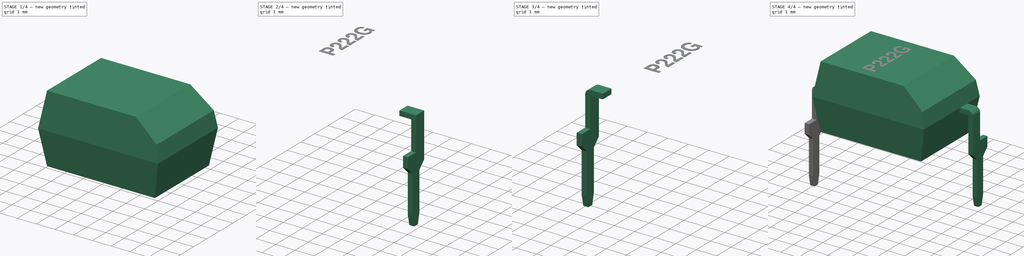
[diagram: build sequence overview — one tinted view per stage of 4, left to right]
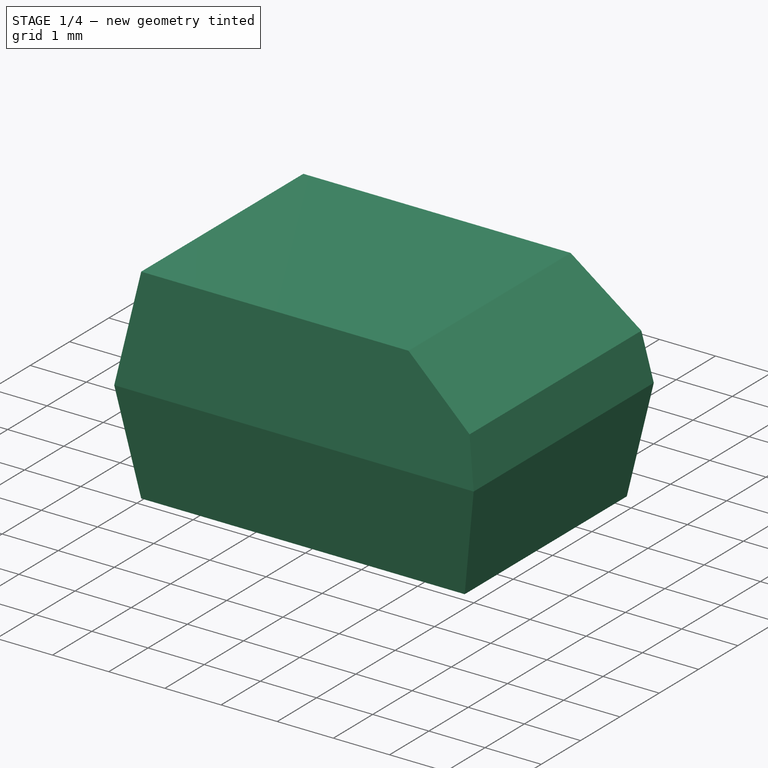
[diagram: stage 1 of 4 — iso view after this stage's code; geometry added in this stage tinted green]
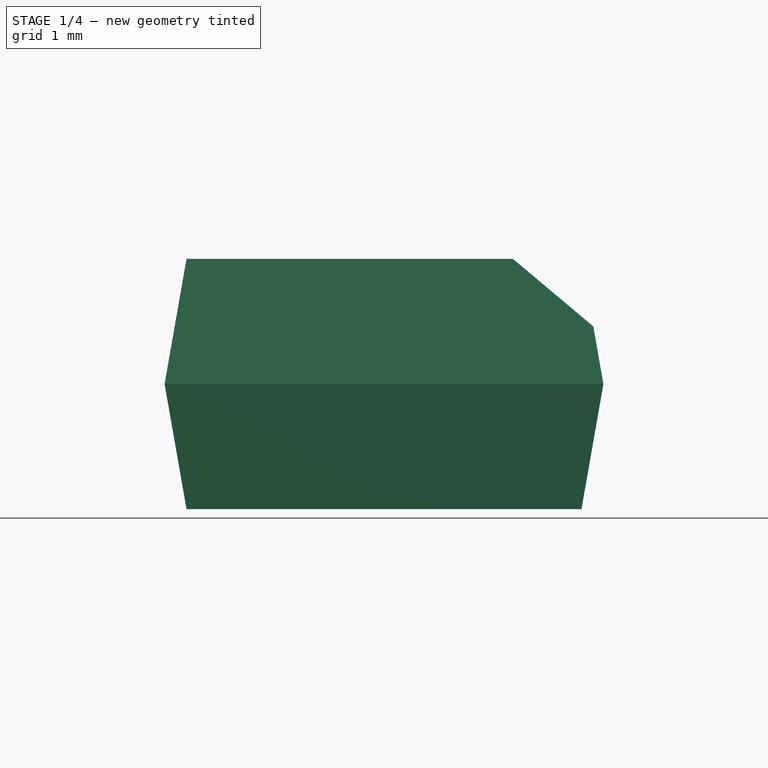
[diagram: stage 1 of 4 — front view after this stage's code; geometry added in this stage tinted green]
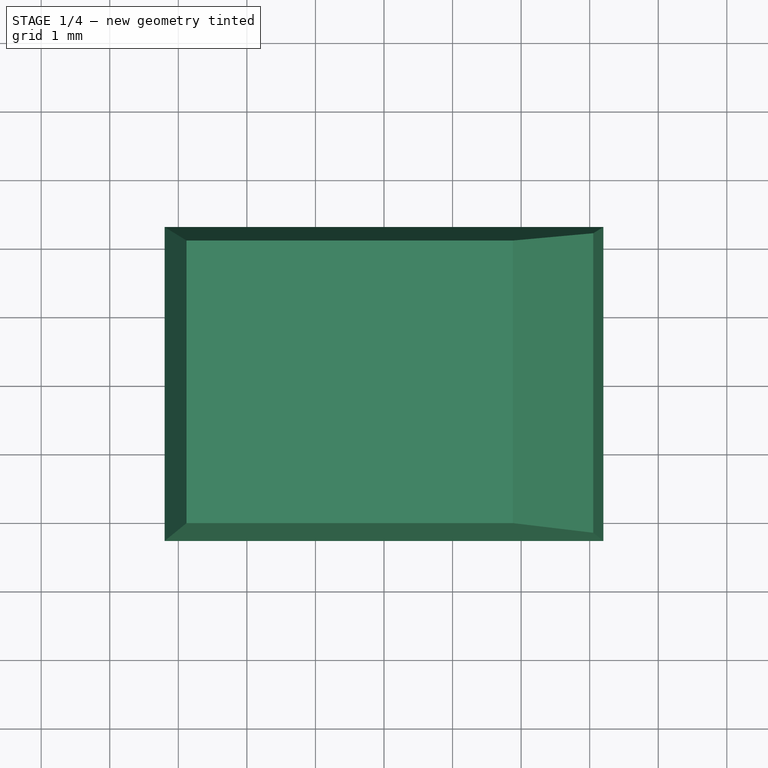
[diagram: stage 1 of 4 — top view after this stage's code; geometry added in this stage tinted green]
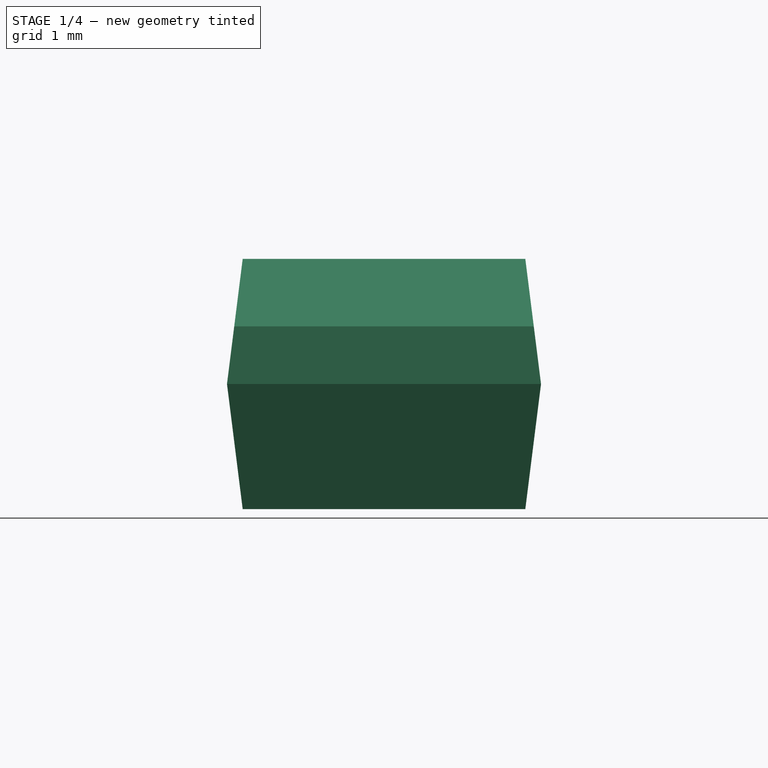
[diagram: stage 1 of 4 — right view after this stage's code; geometry added in this stage tinted green]
FCSTD DOCUMENT  (FreeCAD 0.19R16945 (Git))
Label: DIP-4
License: All rights reserved
LicenseURL: http://en.wikipedia.org/wiki/All_rights_reserved
objects: Sketcher::SketchObject×5, PartDesign::Body×3, PartDesign::Pad×2, Part::Mirroring×2, PartDesign::AdditiveLoft×1, PartDesign::Chamfer×1, PartDesign::Fillet×1, PartDesign::FeatureBase×1, Part::Part2DObjectPython×1, Part::Extrusion×1, Part::MultiFuse×1
note: 22 computed .brp shape members not serialized (recipe doc carries the construction recipe); baked Part::Feature solids carry a one-line shape summary decoded from their .brp

FEATURE [Sketcher::SketchObject] Sketch  label="Mid"
  AttachmentOffset = pos=(0,0,2.625) rot=(0,0,1;0rad)
  MapMode = 5
  Placement = pos=(0,0,2.625) rot=(0,0,1;0rad)
  Support = -> [XY_Plane]
  expr: AttachmentOffset.Base.z = 0.8 + 3.65 / 2
  sketch-geometry (4):
    g0: LineSegment StartX=-3.2 StartY=2.29 StartZ=0 EndX=3.2 EndY=2.29 EndZ=0
    g1: LineSegment StartX=3.2 StartY=2.29 StartZ=0 EndX=3.2 EndY=-2.29 EndZ=0
    g2: LineSegment StartX=3.2 StartY=-2.29 StartZ=0 EndX=-3.2 EndY=-2.29 EndZ=0
    g3: LineSegment StartX=-3.2 StartY=-2.29 StartZ=0 EndX=-3.2 EndY=2.29 EndZ=0
  constraints (11):
    c: Coincident(g0,g1)
    c: Coincident(g1,g2)
    c: Coincident(g2,g3)
    c: Coincident(g3,g0)
    c: Horizontal(g0)
    c: Horizontal(g2)
    c: Vertical(g1)
    c: Vertical(g3)
    c: Symmetric(g1,g0,g-1)
    c: DistanceX(g0,g0) = 6.4
    c: DistanceY(g1,g1) = 4.58
FEATURE [Sketcher::SketchObject] Sketch001  label="Bottom"
  AttachmentOffset = pos=(0,0,0.8) rot=(0,0,1;0rad)
  MapMode = 5
  Placement = pos=(0,0,0.8) rot=(0,0,1;0rad)
  Support = -> [XY_Plane]
  expr: Constraints[10] = 0.9 * Mid.Constraints[10]
  expr: Constraints[9] = 0.9 * Mid.Constraints[9]
  sketch-geometry (4):
    g0: LineSegment StartX=-2.88 StartY=2.061 StartZ=0 EndX=2.88 EndY=2.061 EndZ=0
    g1: LineSegment StartX=2.88 StartY=2.061 StartZ=0 EndX=2.88 EndY=-2.061 EndZ=0
    g2: LineSegment StartX=2.88 StartY=-2.061 StartZ=0 EndX=-2.88 EndY=-2.061 EndZ=0
    g3: LineSegment StartX=-2.88 StartY=-2.061 StartZ=0 EndX=-2.88 EndY=2.061 EndZ=0
  constraints (11):
    c: Coincident(g0,g1)
    c: Coincident(g1,g2)
    c: Coincident(g2,g3)
    c: Coincident(g3,g0)
    c: Horizontal(g0)
    c: Horizontal(g2)
    c: Vertical(g1)
    c: Vertical(g3)
    c: Symmetric(g1,g0,g-1)
    c: DistanceX(g0,g0) = 5.76
    c: DistanceY(g1,g1) = 4.122
FEATURE [Sketcher::SketchObject] Sketch002  label="Top"
  AttachmentOffset = pos=(0,0,4.45) rot=(0,0,1;0rad)
  MapMode = 5
  Placement = pos=(0,0,4.45) rot=(0,0,1;0rad)
  Support = -> [XY_Plane]
  expr: AttachmentOffset.Base.z = 0.8 + 3.65
  expr: Constraints[10] = Bottom.Constraints[10]
  expr: Constraints[9] = Bottom.Constraints[9]
  sketch-geometry (4):
    g0: LineSegment StartX=-2.88 StartY=2.061 StartZ=0 EndX=2.88 EndY=2.061 EndZ=0
    g1: LineSegment StartX=2.88 StartY=2.061 StartZ=0 EndX=2.88 EndY=-2.061 EndZ=0
    g2: LineSegment StartX=2.88 StartY=-2.061 StartZ=0 EndX=-2.88 EndY=-2.061 EndZ=0
    g3: LineSegment StartX=-2.88 StartY=-2.061 StartZ=0 EndX=-2.88 EndY=2.061 EndZ=0
  constraints (11):
    c: Coincident(g0,g1)
    c: Coincident(g1,g2)
    c: Coincident(g2,g3)
    c: Coincident(g3,g0)
    c: Horizontal(g0)
    c: Horizontal(g2)
    c: Vertical(g1)
    c: Vertical(g3)
    c: Symmetric(g1,g0,g-1)
    c: DistanceX(g0,g0) = 5.76
    c: DistanceY(g1,g1) = 4.122
FEATURE [PartDesign::AdditiveLoft] AdditiveLoft
  Closed = true
  Profile = -> Sketch002
  Ruled = true
  Sections = -> [Sketch,Sketch001]
FEATURE [PartDesign::Chamfer] Chamfer
  Base = -> AdditiveLoft [Edge2]
  BaseFeature = -> AdditiveLoft
  Size = 1
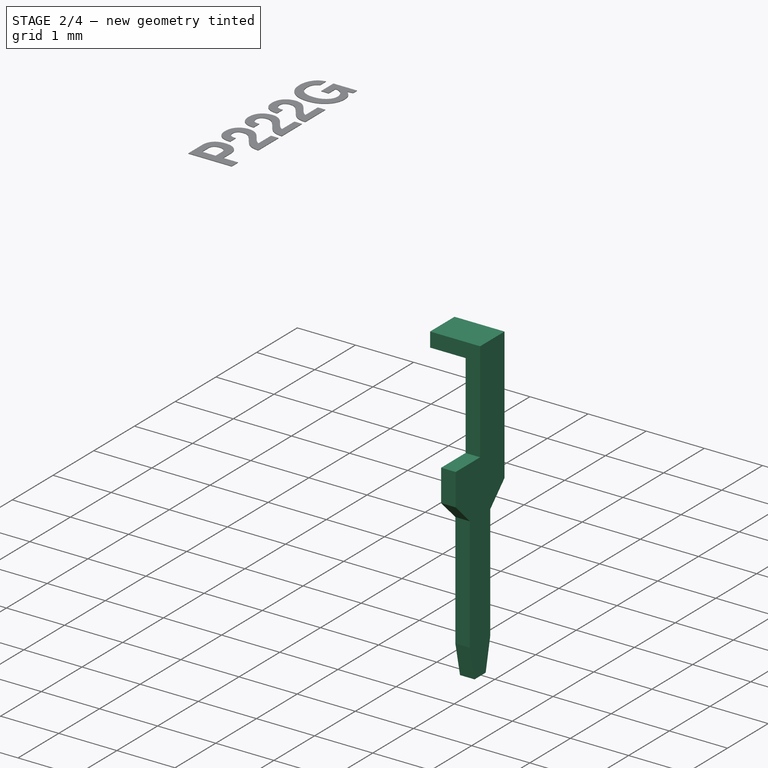
[diagram: stage 2 of 4 — iso view after this stage's code; geometry added in this stage tinted green]
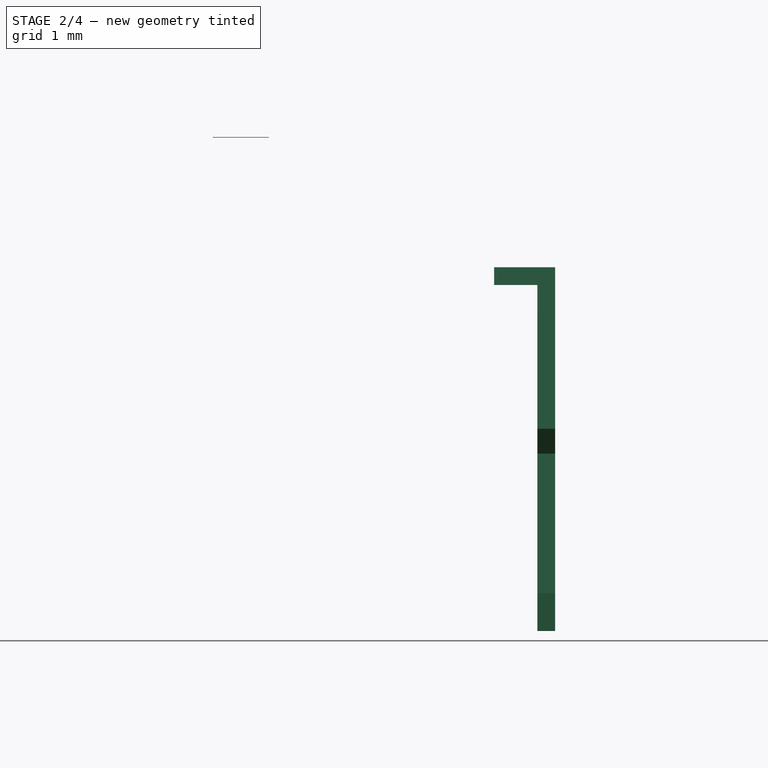
[diagram: stage 2 of 4 — front view after this stage's code; geometry added in this stage tinted green]
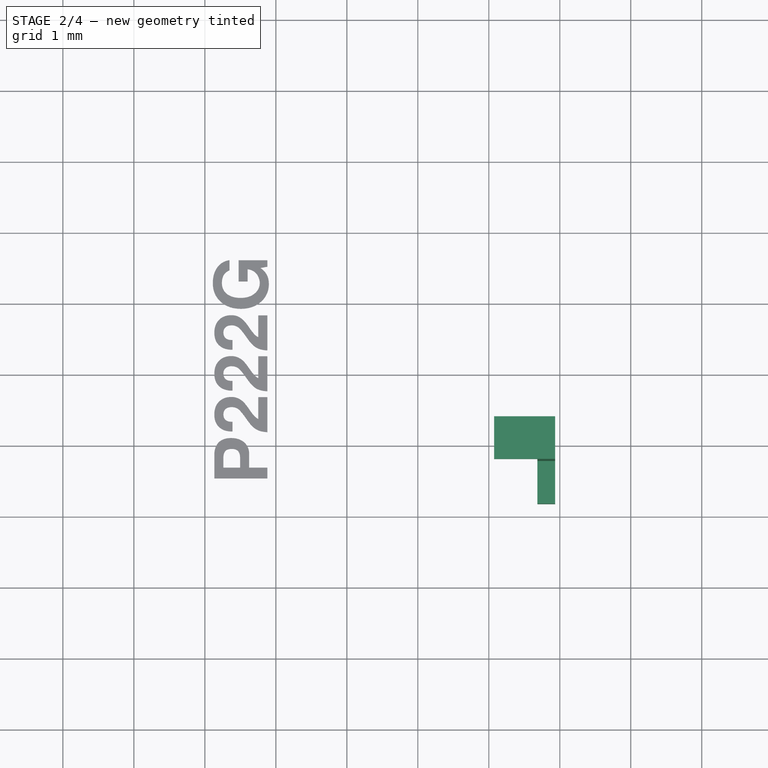
[diagram: stage 2 of 4 — top view after this stage's code; geometry added in this stage tinted green]
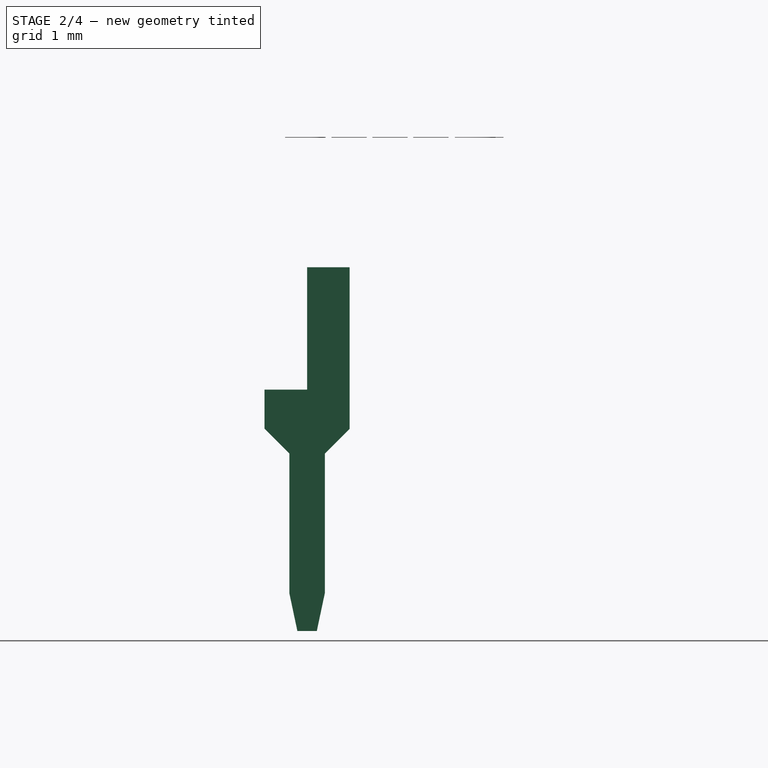
[diagram: stage 2 of 4 — right view after this stage's code; geometry added in this stage tinted green]
FEATURE [PartDesign::Body] Body  label="Housing"
  Group = -> [Sketch,Sketch001,Sketch002,AdditiveLoft,Chamfer]
  Origin = -> Origin
  Tip = -> Chamfer
FEATURE [Sketcher::SketchObject] Sketch003
  AttachmentOffset = pos=(0,0,3.81) rot=(0,0,1;0rad)
  MapMode = 5
  Placement = pos=(3.81,-8e-16,8e-16) rot=(0.57735,0.57735,0.57735;2.0944rad)
  Support = -> [YZ_Plane001]
  expr: Constraints[38] = 3.65 / 2 - 0.1
  sketch-geometry (15):
    g0: LineSegment StartX=-1.87 StartY=0.9 StartZ=0 EndX=-1.87 EndY=0.35 EndZ=0
    g1: LineSegment StartX=-1.87 StartY=0.35 StartZ=0 EndX=-1.52 EndY=0 EndZ=0
    g2: LineSegment StartX=-1.52 StartY=0 StartZ=0 EndX=-1.52 EndY=-1.96657 EndZ=0
    g3: LineSegment StartX=-1.52 StartY=-1.96657 StartZ=0 EndX=-1.40681 EndY=-2.5 EndZ=0
    g4: LineSegment StartX=-1.40681 StartY=-2.5 StartZ=0 EndX=-1.13319 EndY=-2.5 EndZ=0
    g5: LineSegment StartX=-1.13319 StartY=-2.5 StartZ=0 EndX=-1.02 EndY=-1.96657 EndZ=0
    g6: LineSegment StartX=-1.02 StartY=-1.96657 StartZ=0 EndX=-1.02 EndY=0 EndZ=0
    g7: LineSegment StartX=-1.02 StartY=0 StartZ=0 EndX=-0.67 EndY=0.35 EndZ=0
    g8: LineSegment StartX=-0.67 StartY=0.35 StartZ=0 EndX=-0.67 EndY=0.9 EndZ=0
    g9: LineSegment [constr] StartX=-1.87 StartY=0.9 StartZ=0 EndX=-0.67 EndY=0.9 EndZ=0
    g10: GeomPoint X=-1.27 Y=0.9 Z=0
    g11: LineSegment StartX=-1.87 StartY=0.9 StartZ=0 EndX=-1.27 EndY=0.9 EndZ=0
    g12: LineSegment StartX=-1.27 StartY=0.9 StartZ=0 EndX=-1.27 EndY=2.625 EndZ=0
    g13: LineSegment StartX=-1.27 StartY=2.625 StartZ=0 EndX=-0.67 EndY=2.625 EndZ=0
    g14: LineSegment StartX=-0.67 StartY=2.625 StartZ=0 EndX=-0.67 EndY=0.9 EndZ=0
  constraints (39):
    c: Vertical(g0)
    c: Coincident(g0,g1)
    c: Coincident(g1,g2)
    c: Vertical(g2)
    c: Coincident(g2,g3)
    c: Coincident(g3,g4)
    c: Coincident(g4,g5)
    c: Coincident(g5,g6)
    c: Vertical(g6)
    c: Coincident(g6,g7)
    c: Coincident(g7,g8)
    c: Vertical(g8)
    c: Horizontal(g4)
    c: Equal(g3,g5)
    c: Horizontal(g5,g2)
    c: DistanceX(g2,g5) = 0.5
    c: DistanceX(g0,g7) = 1.2
    c: Horizontal(g6,g1)
    c: Horizontal(g7,g0)
    c: Equal(g7,g1)
    c: DistanceY(g4,g6) = 2.5
    c: Coincident(g9,g0)
    c: Coincident(g9,g8)
    c: Symmetric(g8,g0,g10)
    c: DistanceX(g10,g-1) = 1.27
    c: Angle(g6,g7) = 2.35619
    c: Coincident(g0,g11)
    c: Coincident(g11,g10)
    c: Coincident(g11,g12)
    c: Vertical(g12)
    c: Coincident(g12,g13)
    c: Coincident(g13,g14)
    c: Coincident(g14,g8)
    c: Vertical(g14)
    c: Horizontal(g13)
    c: Horizontal(g9)
    c: PointOnObject(g6,g-1)
    c: DistanceY(g6,g8) = 0.9
    c: DistanceY(g14,g14) = 1.725
FEATURE [PartDesign::Pad] Pad
  Length = 0.25
  Length2 = 100
  Midplane = true
  Placement = pos=(0,0,0) rot=(0.57735,0.57735,0.57735;2.0944rad)
  Profile = -> Sketch003
  Type = 0
FEATURE [Sketcher::SketchObject] Sketch004
  ExternalGeometry = -> [Pad]
  MapMode = 5
  Placement = pos=(3.685,-1e-16,8e-16) rot=(0.57735,0.57735,-0.57735;4.18879rad)
  Support = -> [Pad]
  sketch-geometry (4):
    g0: LineSegment StartX=-0.67 StartY=-2.625 StartZ=0 EndX=-1.27 EndY=-2.625 EndZ=0
    g1: LineSegment StartX=-1.27 StartY=-2.625 StartZ=0 EndX=-1.27 EndY=-2.375 EndZ=0
    g2: LineSegment StartX=-1.27 StartY=-2.375 StartZ=0 EndX=-0.67 EndY=-2.375 EndZ=0
    g3: LineSegment StartX=-0.67 StartY=-2.375 StartZ=0 EndX=-0.67 EndY=-2.625 EndZ=0
  constraints (11):
    c: Coincident(g0,g1)
    c: Coincident(g1,g2)
    c: Coincident(g2,g3)
    c: Coincident(g3,g0)
    c: Horizontal(g0)
    c: Horizontal(g2)
    c: Vertical(g1)
    c: Vertical(g3)
    c: Coincident(g0,g-3)
    c: PointOnObject(g1,g-4)
    c: DistanceY(g3,g3) = 0.25
FEATURE [PartDesign::Pad] Pad001
  BaseFeature = -> Pad
  Length = 0.61
  Length2 = 100
  Placement = pos=(0,0,0) rot=(0.57735,0.57735,0.57735;2.0944rad)
  Profile = -> Sketch004
  Refine = true
  Type = 0
  expr: Length = 7.62 / 2 - 6.4 / 2
FEATURE [Part::Part2DObjectPython] ShapeString  # Draft 2D object (typed FeaturePython)
  AttachmentOffset = pos=(2,-0.4,0) rot=(0,0,-1;1.5708rad)
  FontFile = <userpath>/Desktop/GitHub/freecad-projects/00-fonts/FreeSansBold.ttf
  MapMode = 6
  Placement = pos=(-0.12,-1.661,4.45) rot=(0,0,1;1.5708rad)
  Size = 0.4
  String = P222G
  Support = -> [Chamfer]
  Tracking = 0
FEATURE [Part::Extrusion] Extrude
  Base = -> ShapeString
  Dir = (0,0,1)
  DirMode = 2
  FaceMakerClass = Part::FaceMakerBullseye
  LengthFwd = 0.01
  LengthRev = 0
  Solid = false
  Symmetric = false
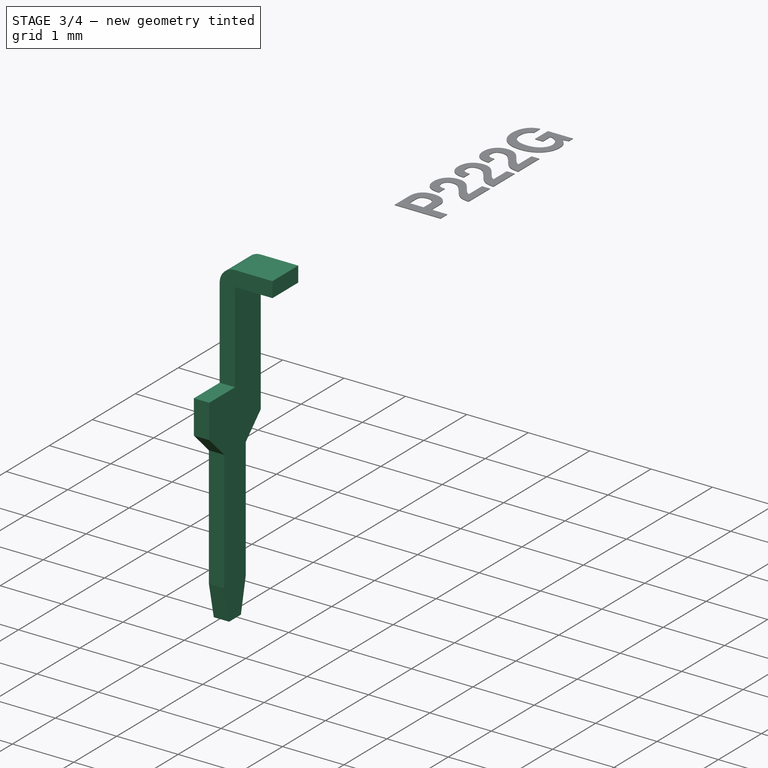
[diagram: stage 3 of 4 — iso view after this stage's code; geometry added in this stage tinted green]
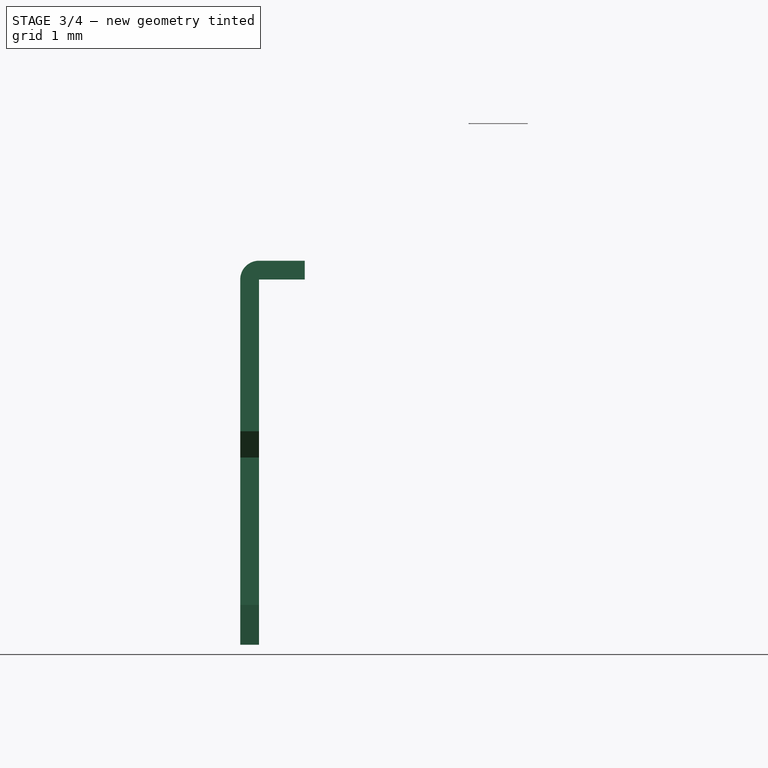
[diagram: stage 3 of 4 — front view after this stage's code; geometry added in this stage tinted green]
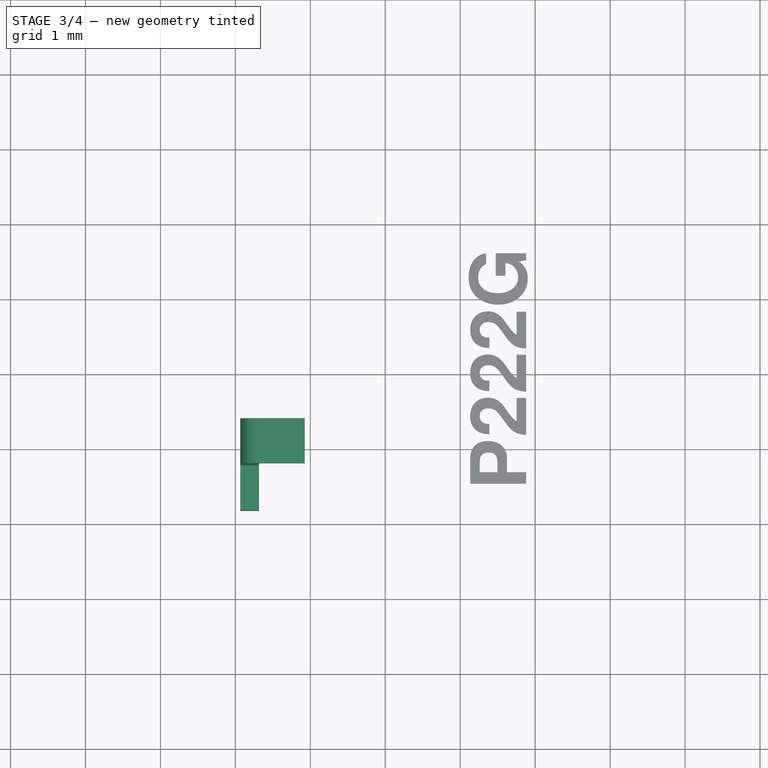
[diagram: stage 3 of 4 — top view after this stage's code; geometry added in this stage tinted green]
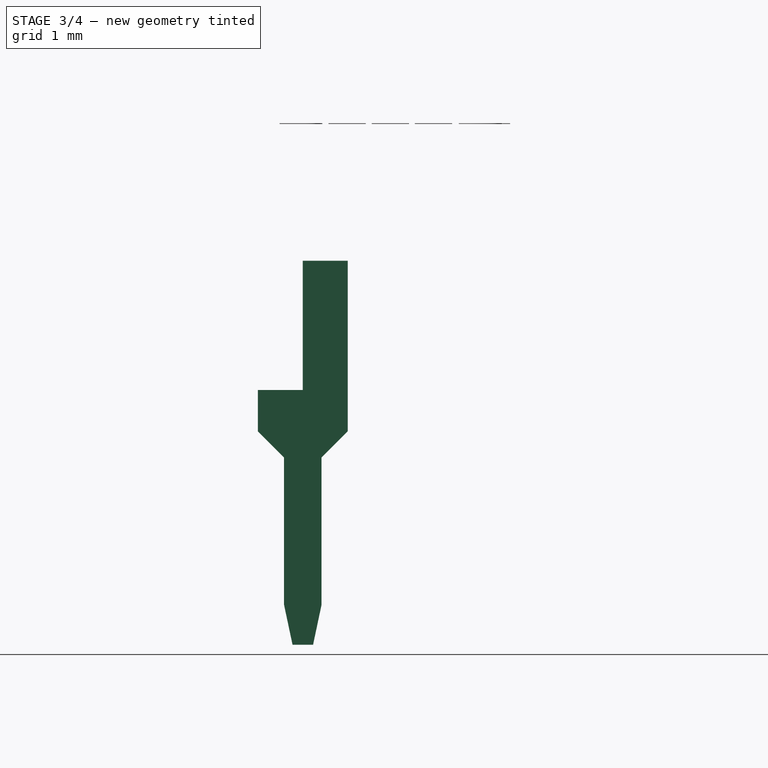
[diagram: stage 3 of 4 — right view after this stage's code; geometry added in this stage tinted green]
FEATURE [PartDesign::Fillet] Fillet
  Base = -> Pad001 [Edge27]
  BaseFeature = -> Pad001
  Placement = pos=(0,0,0) rot=(0.57735,0.57735,0.57735;2.0944rad)
  Radius = 0.25
FEATURE [PartDesign::Body] Body001  label="Lead"
  Group = -> [Sketch003,Pad,Sketch004,Pad001,Fillet]
  Origin = -> Origin001
  Tip = -> Fillet
FEATURE [PartDesign::FeatureBase] Clone
  BaseFeature = -> Body001
FEATURE [Part::Mirroring] Part__Mirroring001  label="LeadClone (Mirror #2)"
  Base = (0,0,0)
  Normal = (0,1,0)
  Source = -> Body002
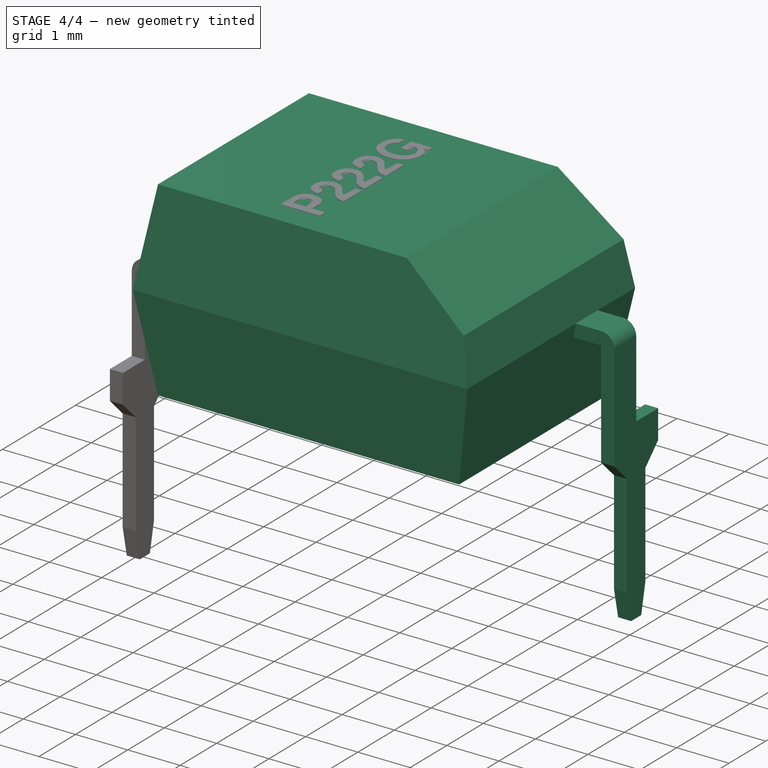
[diagram: stage 4 of 4 — iso view after this stage's code; geometry added in this stage tinted green]
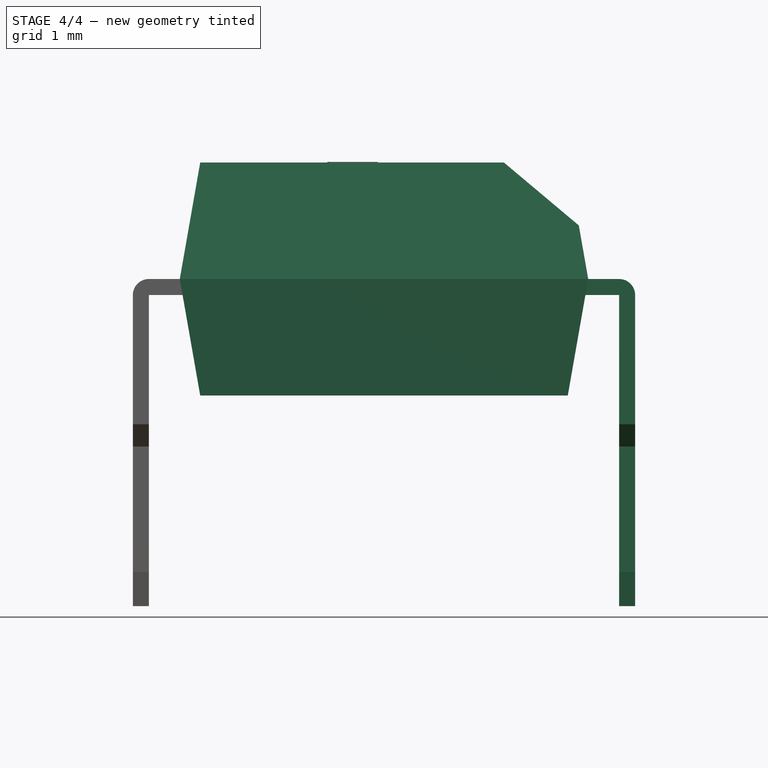
[diagram: stage 4 of 4 — front view after this stage's code; geometry added in this stage tinted green]
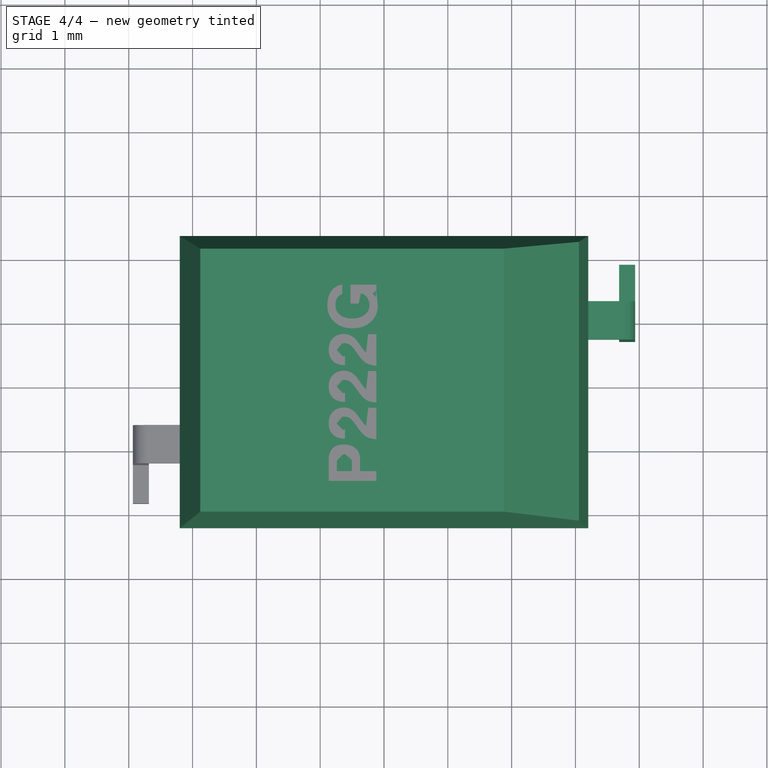
[diagram: stage 4 of 4 — top view after this stage's code; geometry added in this stage tinted green]
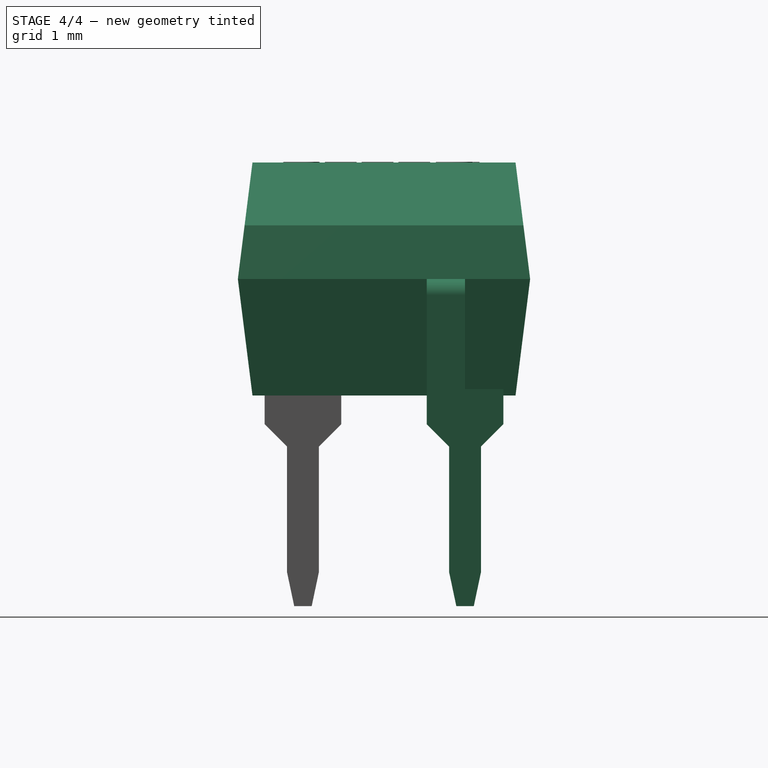
[diagram: stage 4 of 4 — right view after this stage's code; geometry added in this stage tinted green]
FEATURE [PartDesign::Body] Body002  label="LeadClone"
  BaseFeature = -> Body001
  Group = -> [Clone]
  Origin = -> Origin002
  Placement = pos=(0,0,0) rot=(0,0,1;3.14159rad)
  Tip = -> Clone
FEATURE [Part::Mirroring] Part__Mirroring  label="Lead (Mirror #1)"
  Base = (0,0,0)
  Normal = (0,1,0)
  Source = -> Body001
FEATURE [Part::MultiFuse] Fusion  label="TLP222G(F)"
  Shapes = -> [Part__Mirroring,Body,Part__Mirroring001,Extrude]
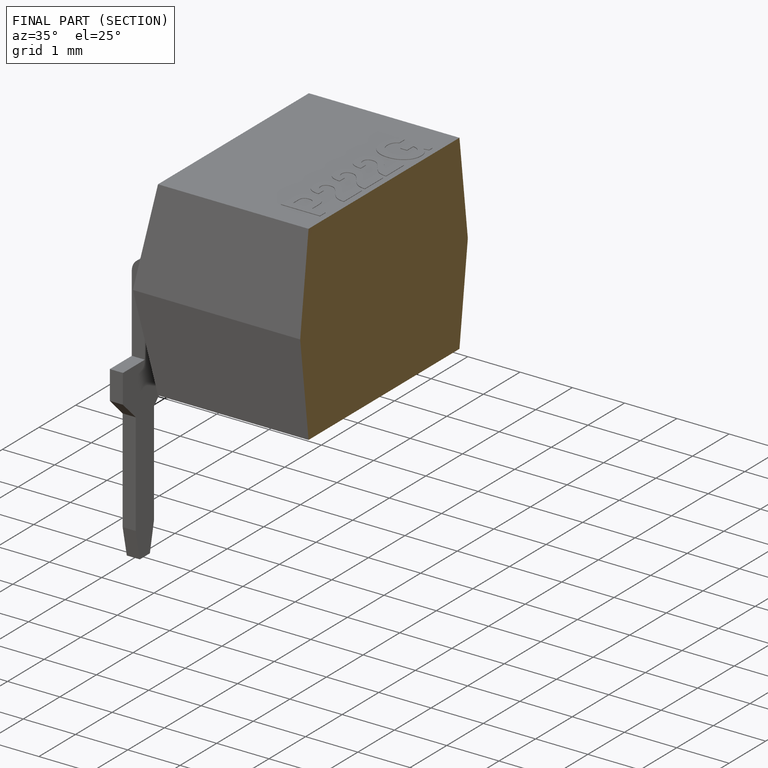
[diagram: finished part — half-section view (interior)]
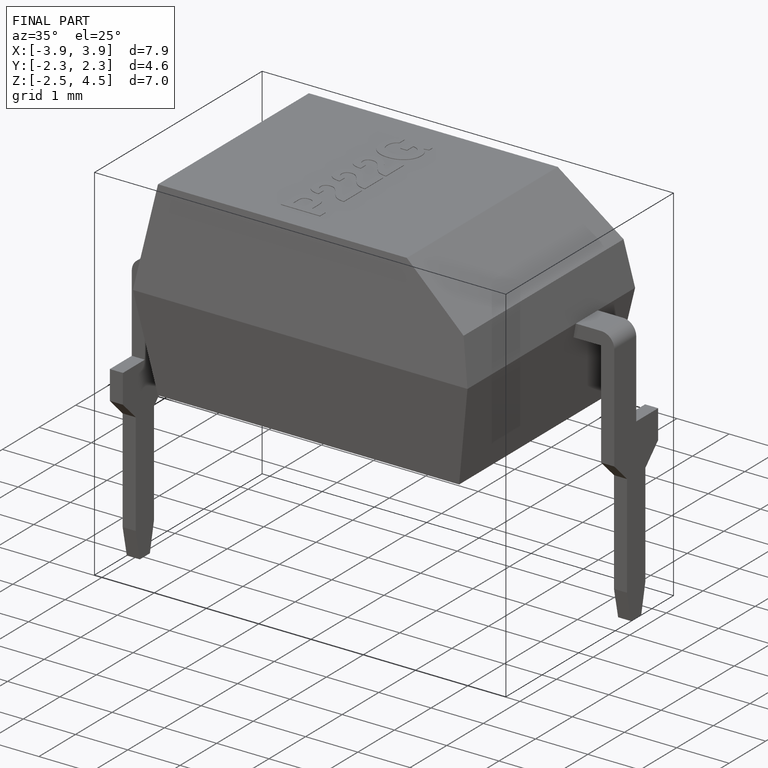
[diagram: finished part — iso view with bounding-box wireframe]
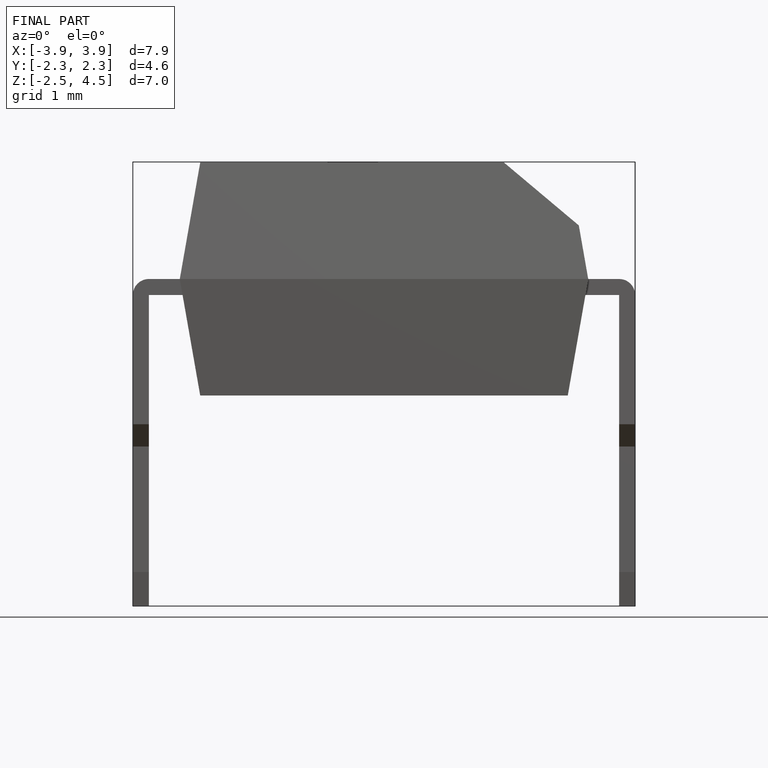
[diagram: finished part — front view with bounding-box wireframe]
